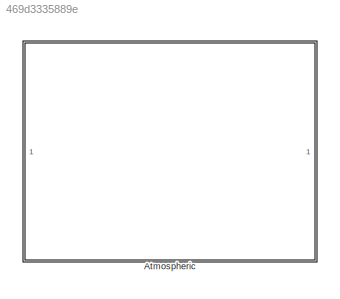
MODEL slx_469d3335889e
KIND library
CONFIG AbsTol = auto
CONFIG EnableMultiTasking = off
CONFIG FixedStep = auto
CONFIG MaxStep = auto
CONFIG MinStep = auto
CONFIG RelTol = 1e-3
CONFIG SampleTimeConstraint = Unconstrained
CONFIG SolverName = VariableStepAuto
CONFIG StartTime = 0.0
CONFIG StopTime = 10.0
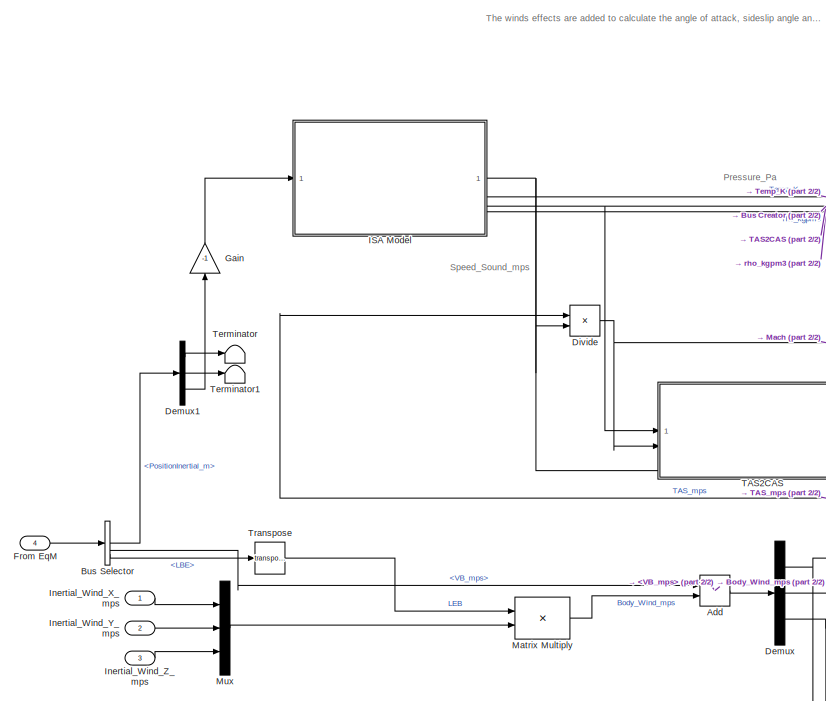
[diagram: Atmospheric - part 1/2, left side, full height]
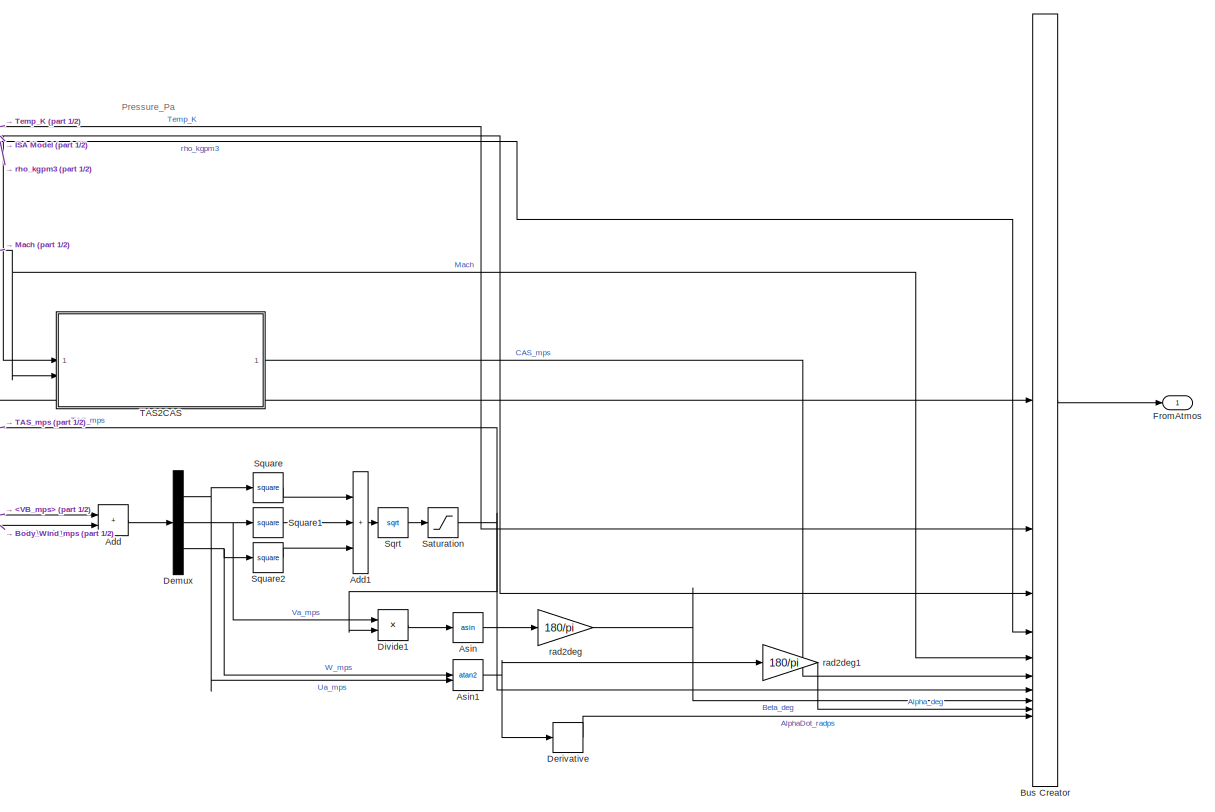
[diagram: Atmospheric - part 2/2, center side, full height]
BLOCK [SubSystem] Atmospheric
BLOCK [Sum] Atmospheric/Add
  IconShape = rectangular
BLOCK [Sum] Atmospheric/Add1
  IconShape = rectangular
  Inputs = +++
BLOCK [Trigonometry] Atmospheric/Asin
  Operator = asin
BLOCK [Trigonometry] Atmospheric/Asin1
  Operator = atan2
BLOCK [BusCreator] Atmospheric/Bus Creator
  DisplayOption = bar
  InheritFromInputs = on
  Inputs = 10
BLOCK [BusSelector] Atmospheric/Bus Selector
  OutputSignals = PositionInertial_m,VB_mps,LBE
BLOCK [Demux] Atmospheric/Demux
  Outputs = 3
BLOCK [Demux] Atmospheric/Demux1
  Outputs = 3
BLOCK [Derivative] Atmospheric/Derivative
BLOCK [Product] Atmospheric/Divide
  Inputs = */
BLOCK [Product] Atmospheric/Divide1
  Inputs = */
BLOCK [Inport] Atmospheric/From EqM
  Port = 4
BLOCK [Outport] Atmospheric/FromAtmos
BLOCK [Gain] Atmospheric/Gain
  Gain = -1
  NameLocation = right
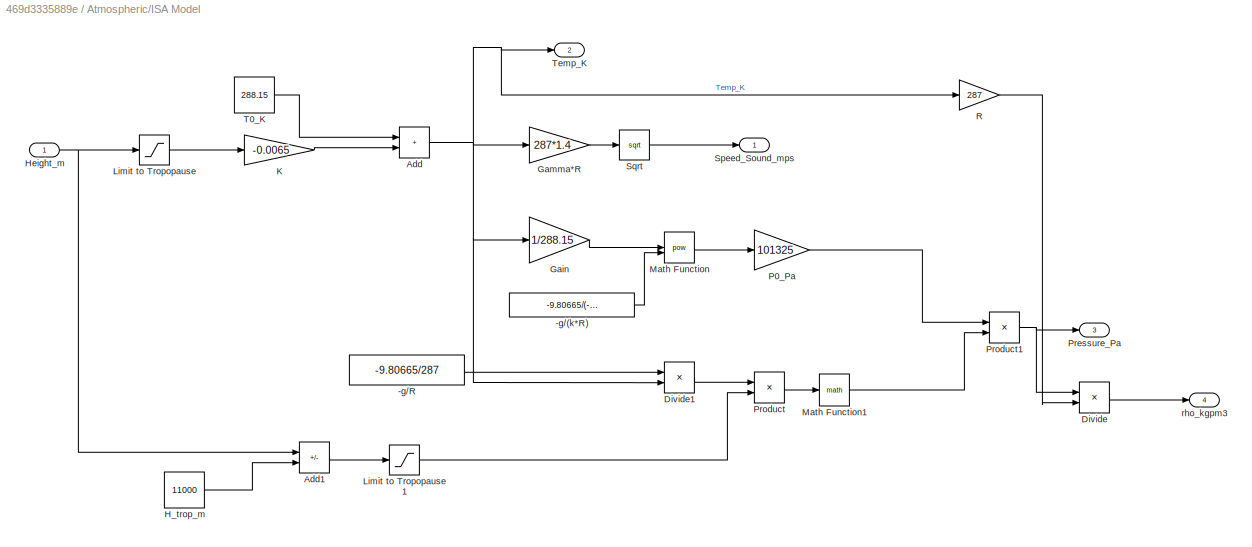
BLOCK [SubSystem] Atmospheric/ISA Model
BLOCK [Constant] Atmospheric/ISA Model/-g//(k*R)
  Value = -9.80665/(-0.0065*287)
BLOCK [Constant] Atmospheric/ISA Model/-g//R
  Value = -9.80665/287
BLOCK [Sum] Atmospheric/ISA Model/Add
  IconShape = rectangular
BLOCK [Sum] Atmospheric/ISA Model/Add1
  IconShape = rectangular
  Inputs = +-
BLOCK [Product] Atmospheric/ISA Model/Divide
  Inputs = */
BLOCK [Product] Atmospheric/ISA Model/Divide1
  Inputs = */
BLOCK [Gain] Atmospheric/ISA Model/Gain
  Gain = 1/288.15
BLOCK [Gain] Atmospheric/ISA Model/Gamma*R
  Gain = 287*1.4
BLOCK [Constant] Atmospheric/ISA Model/H_trop_m
  Value = 11000
BLOCK [Inport] Atmospheric/ISA Model/Height_m
BLOCK [Gain] Atmospheric/ISA Model/K
  Gain = -0.0065
BLOCK [Saturate] Atmospheric/ISA Model/Limit to Tropopause
  LowerLimit = 0
  UpperLimit = 11000
BLOCK [Saturate] Atmospheric/ISA Model/Limit to Tropopause1
  LowerLimit = 0
  UpperLimit = inf
BLOCK [Math] Atmospheric/ISA Model/Math Function
  Operator = pow
  SignedPower = on
BLOCK [Math] Atmospheric/ISA Model/Math Function1
BLOCK [Gain] Atmospheric/ISA Model/P0_Pa
  Gain = 101325
BLOCK [Outport] Atmospheric/ISA Model/Pressure_Pa
  Port = 3
BLOCK [Product] Atmospheric/ISA Model/Product
BLOCK [Product] Atmospheric/ISA Model/Product1
BLOCK [Gain] Atmospheric/ISA Model/R
  Gain = 287
BLOCK [Outport] Atmospheric/ISA Model/Speed_Sound_mps
BLOCK [Sqrt] Atmospheric/ISA Model/Sqrt
BLOCK [Constant] Atmospheric/ISA Model/T0_K
  Value = 288.15
BLOCK [Outport] Atmospheric/ISA Model/Temp_K
  Port = 2
BLOCK [Outport] Atmospheric/ISA Model/rho_kgpm3
  Port = 4
BLOCK [Inport] Atmospheric/Inertial_Wind_X_mps
BLOCK [Inport] Atmospheric/Inertial_Wind_Y_mps
  Port = 2
BLOCK [Inport] Atmospheric/Inertial_Wind_Z_mps
  Port = 3
BLOCK [Product] Atmospheric/Matrix Multiply
  Multiplication = Matrix(*)
BLOCK [Mux] Atmospheric/Mux
  DisplayOption = bar
  Inputs = 3
BLOCK [Saturate] Atmospheric/Saturation
  LowerLimit = 0.1
  UpperLimit = inf
BLOCK [Sqrt] Atmospheric/Sqrt
BLOCK [Math] Atmospheric/Square
  Operator = square
BLOCK [Math] Atmospheric/Square1
  Operator = square
BLOCK [Math] Atmospheric/Square2
  Operator = square
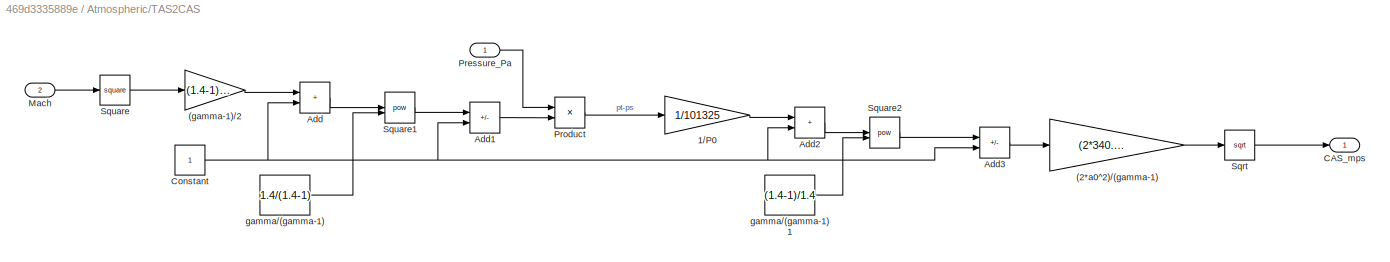
BLOCK [SubSystem] Atmospheric/TAS2CAS
BLOCK [Gain] Atmospheric/TAS2CAS/(2*a0^2)//(gamma-1)
  Gain = (2*340.262^2)/(1.4-1)
BLOCK [Gain] Atmospheric/TAS2CAS/(gamma-1)//2
  Gain = (1.4-1)/2
BLOCK [Gain] Atmospheric/TAS2CAS/1//P0
  Gain = 1/101325
BLOCK [Sum] Atmospheric/TAS2CAS/Add
  IconShape = rectangular
BLOCK [Sum] Atmospheric/TAS2CAS/Add1
  IconShape = rectangular
  Inputs = +-
BLOCK [Sum] Atmospheric/TAS2CAS/Add2
  IconShape = rectangular
BLOCK [Sum] Atmospheric/TAS2CAS/Add3
  IconShape = rectangular
  Inputs = +-
BLOCK [Outport] Atmospheric/TAS2CAS/CAS_mps
BLOCK [Constant] Atmospheric/TAS2CAS/Constant
BLOCK [Inport] Atmospheric/TAS2CAS/Mach
  Port = 2
BLOCK [Inport] Atmospheric/TAS2CAS/Pressure_Pa
BLOCK [Product] Atmospheric/TAS2CAS/Product
BLOCK [Sqrt] Atmospheric/TAS2CAS/Sqrt
BLOCK [Math] Atmospheric/TAS2CAS/Square
  Operator = square
BLOCK [Math] Atmospheric/TAS2CAS/Square1
  Operator = pow
  SignedPower = on
BLOCK [Math] Atmospheric/TAS2CAS/Square2
  Operator = pow
  SignedPower = on
BLOCK [Constant] Atmospheric/TAS2CAS/gamma//(gamma-1)
  Value = 1.4/(1.4-1)
BLOCK [Constant] Atmospheric/TAS2CAS/gamma//(gamma-1)1
  Value = (1.4-1)/1.4
BLOCK [Terminator] Atmospheric/Terminator
BLOCK [Terminator] Atmospheric/Terminator1
BLOCK [Math] Atmospheric/Transpose
  Operator = transpose
BLOCK [Gain] Atmospheric/rad2deg
  Gain = 180/pi
BLOCK [Gain] Atmospheric/rad2deg1
  Gain = 180/pi
ANNOTATION Atmospheric: The winds effects are added to calculate the angle of attack, sideslip angle and True Air Speed. The Ua, Va and Wa(aerodynamic velocities) are in the body frame along with wind effects.
ANNOTATION Atmospheric: Pressure_Pa
ANNOTATION Atmospheric: Speed_Sound_mps
LINE Atmospheric/Add1:1 -> Atmospheric/Sqrt:1
LINE Atmospheric/Add:1 -> Atmospheric/Demux:1
NET Atmospheric/Asin1:1 -> Atmospheric/Derivative:1, Atmospheric/rad2deg1:1
LINE Atmospheric/Asin:1 -> Atmospheric/rad2deg:1
LINE Atmospheric/Bus Creator:1 -> Atmospheric/FromAtmos:1
LINE Atmospheric/Bus Selector:1 -> Atmospheric/Demux1:1
LINE Atmospheric/Bus Selector:2 -> Atmospheric/Add:1
LINE Atmospheric/Bus Selector:3 -> Atmospheric/Transpose:1
LINE Atmospheric/Demux1:1 -> Atmospheric/Terminator:1
LINE Atmospheric/Demux1:2 -> Atmospheric/Terminator1:1
LINE Atmospheric/Demux1:3 -> Atmospheric/Gain:1
NET Atmospheric/Demux:1 -> Atmospheric/Asin1:2, Atmospheric/Square:1
NET Atmospheric/Demux:2 -> Atmospheric/Divide1:1, Atmospheric/Square1:1
NET Atmospheric/Demux:3 -> Atmospheric/Asin1:1, Atmospheric/Square2:1
LINE Atmospheric/Derivative:1 -> Atmospheric/Bus Creator:10
LINE Atmospheric/Divide1:1 -> Atmospheric/Asin:1
NET Atmospheric/Divide:1 -> Atmospheric/Bus Creator:5, Atmospheric/TAS2CAS:2
LINE Atmospheric/From EqM:1 -> Atmospheric/Bus Selector:1
LINE Atmospheric/Gain:1 -> Atmospheric/ISA Model:1
LINE Atmospheric/ISA Model/-g//(k*R):1 -> Atmospheric/ISA Model/Math Function:2
LINE Atmospheric/ISA Model/-g//R:1 -> Atmospheric/ISA Model/Divide1:1
LINE Atmospheric/ISA Model/Add1:1 -> Atmospheric/ISA Model/Limit to Tropopause1:1
NET Atmospheric/ISA Model/Add:1 -> Atmospheric/ISA Model/Divide1:2, Atmospheric/ISA Model/Gain:1, Atmospheric/ISA Model/Gamma*R:1, Atmospheric/ISA Model/R:1, Atmospheric/ISA Model/Temp_K:1
LINE Atmospheric/ISA Model/Divide1:1 -> Atmospheric/ISA Model/Product:1
LINE Atmospheric/ISA Model/Divide:1 -> Atmospheric/ISA Model/rho_kgpm3:1
LINE Atmospheric/ISA Model/Gain:1 -> Atmospheric/ISA Model/Math Function:1
LINE Atmospheric/ISA Model/Gamma*R:1 -> Atmospheric/ISA Model/Sqrt:1
LINE Atmospheric/ISA Model/H_trop_m:1 -> Atmospheric/ISA Model/Add1:2
NET Atmospheric/ISA Model/Height_m:1 -> Atmospheric/ISA Model/Add1:1, Atmospheric/ISA Model/Limit to Tropopause:1
LINE Atmospheric/ISA Model/K:1 -> Atmospheric/ISA Model/Add:2
LINE Atmospheric/ISA Model/Limit to Tropopause1:1 -> Atmospheric/ISA Model/Product:2
LINE Atmospheric/ISA Model/Limit to Tropopause:1 -> Atmospheric/ISA Model/K:1
LINE Atmospheric/ISA Model/Math Function1:1 -> Atmospheric/ISA Model/Product1:2
LINE Atmospheric/ISA Model/Math Function:1 -> Atmospheric/ISA Model/P0_Pa:1
LINE Atmospheric/ISA Model/P0_Pa:1 -> Atmospheric/ISA Model/Product1:1
NET Atmospheric/ISA Model/Product1:1 -> Atmospheric/ISA Model/Divide:1, Atmospheric/ISA Model/Pressure_Pa:1
LINE Atmospheric/ISA Model/Product:1 -> Atmospheric/ISA Model/Math Function1:1
LINE Atmospheric/ISA Model/R:1 -> Atmospheric/ISA Model/Divide:2
LINE Atmospheric/ISA Model/Sqrt:1 -> Atmospheric/ISA Model/Speed_Sound_mps:1
LINE Atmospheric/ISA Model/T0_K:1 -> Atmospheric/ISA Model/Add:1
NET Atmospheric/ISA Model:1 -> Atmospheric/Bus Creator:1, Atmospheric/Divide:2
LINE Atmospheric/ISA Model:2 -> Atmospheric/Bus Creator:2
NET Atmospheric/ISA Model:3 -> Atmospheric/Bus Creator:3, Atmospheric/TAS2CAS:1
LINE Atmospheric/ISA Model:4 -> Atmospheric/Bus Creator:4
LINE Atmospheric/Inertial_Wind_X_mps:1 -> Atmospheric/Mux:1
LINE Atmospheric/Inertial_Wind_Y_mps:1 -> Atmospheric/Mux:2
LINE Atmospheric/Inertial_Wind_Z_mps:1 -> Atmospheric/Mux:3
LINE Atmospheric/Matrix Multiply:1 -> Atmospheric/Add:2
LINE Atmospheric/Mux:1 -> Atmospheric/Matrix Multiply:2
NET Atmospheric/Saturation:1 -> Atmospheric/Bus Creator:7, Atmospheric/Divide1:2, Atmospheric/Divide:1
LINE Atmospheric/Sqrt:1 -> Atmospheric/Saturation:1
LINE Atmospheric/Square1:1 -> Atmospheric/Add1:2
LINE Atmospheric/Square2:1 -> Atmospheric/Add1:3
LINE Atmospheric/Square:1 -> Atmospheric/Add1:1
LINE Atmospheric/TAS2CAS/(2*a0^2)//(gamma-1):1 -> Atmospheric/TAS2CAS/Sqrt:1
LINE Atmospheric/TAS2CAS/(gamma-1)//2:1 -> Atmospheric/TAS2CAS/Add:1
LINE Atmospheric/TAS2CAS/1//P0:1 -> Atmospheric/TAS2CAS/Add2:1
LINE Atmospheric/TAS2CAS/Add1:1 -> Atmospheric/TAS2CAS/Product:2
LINE Atmospheric/TAS2CAS/Add2:1 -> Atmospheric/TAS2CAS/Square2:1
LINE Atmospheric/TAS2CAS/Add3:1 -> Atmospheric/TAS2CAS/(2*a0^2)//(gamma-1):1
LINE Atmospheric/TAS2CAS/Add:1 -> Atmospheric/TAS2CAS/Square1:1
NET Atmospheric/TAS2CAS/Constant:1 -> Atmospheric/TAS2CAS/Add1:2, Atmospheric/TAS2CAS/Add2:2, Atmospheric/TAS2CAS/Add3:2, Atmospheric/TAS2CAS/Add:2
LINE Atmospheric/TAS2CAS/Mach:1 -> Atmospheric/TAS2CAS/Square:1
LINE Atmospheric/TAS2CAS/Pressure_Pa:1 -> Atmospheric/TAS2CAS/Product:1
LINE Atmospheric/TAS2CAS/Product:1 -> Atmospheric/TAS2CAS/1//P0:1
LINE Atmospheric/TAS2CAS/Sqrt:1 -> Atmospheric/TAS2CAS/CAS_mps:1
LINE Atmospheric/TAS2CAS/Square1:1 -> Atmospheric/TAS2CAS/Add1:1
LINE Atmospheric/TAS2CAS/Square2:1 -> Atmospheric/TAS2CAS/Add3:1
LINE Atmospheric/TAS2CAS/Square:1 -> Atmospheric/TAS2CAS/(gamma-1)//2:1
LINE Atmospheric/TAS2CAS/gamma//(gamma-1)1:1 -> Atmospheric/TAS2CAS/Square2:2
LINE Atmospheric/TAS2CAS/gamma//(gamma-1):1 -> Atmospheric/TAS2CAS/Square1:2
LINE Atmospheric/TAS2CAS:1 -> Atmospheric/Bus Creator:6
LINE Atmospheric/Transpose:1 -> Atmospheric/Matrix Multiply:1
LINE Atmospheric/rad2deg1:1 -> Atmospheric/Bus Creator:9
LINE Atmospheric/rad2deg:1 -> Atmospheric/Bus Creator:8
note: NET lines group one-source signal fan-out (src -> all destinations, sorted); 1:1 wires keep LINE
